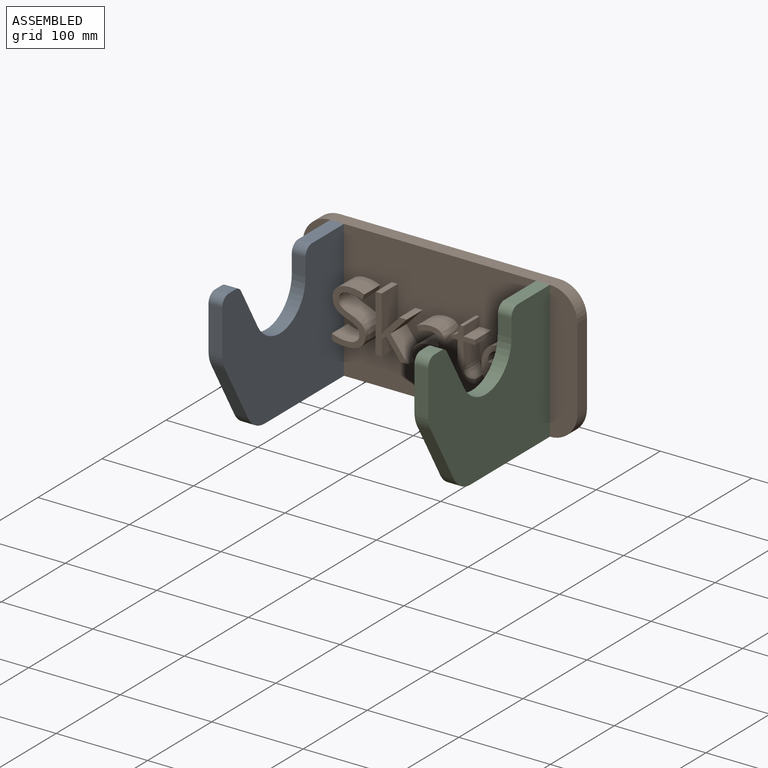
[diagram: assembled view]
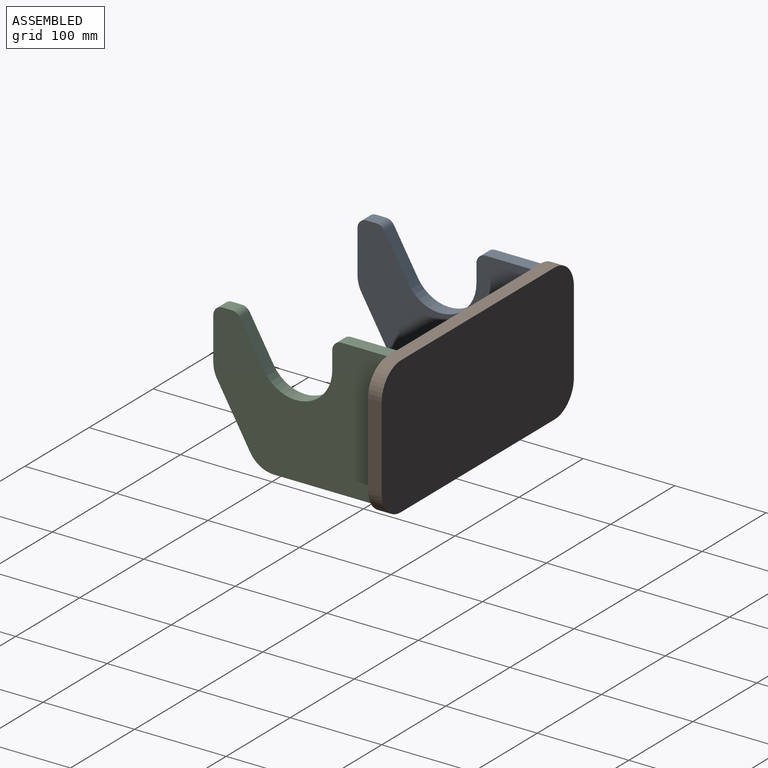
[diagram: assembled view, second angle]
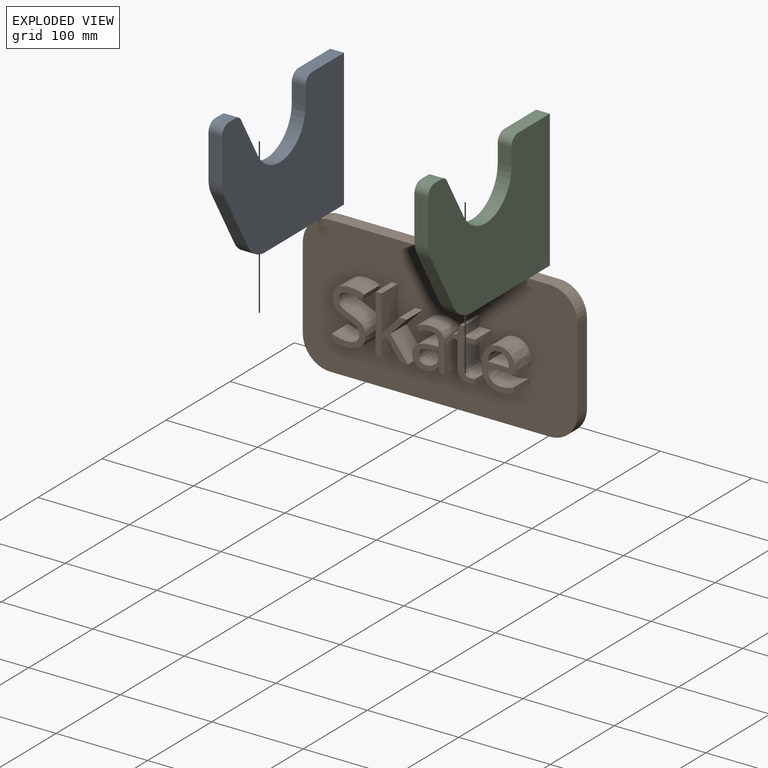
[diagram: exploded view]
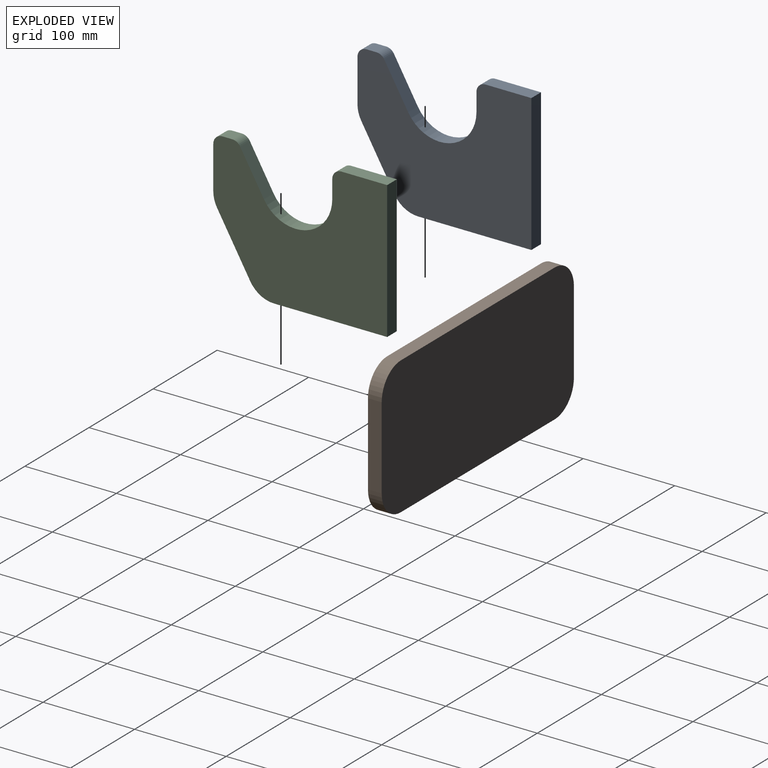
[diagram: exploded view, second angle]
ASSEMBLY  parts=3 mates=2
PART A: 16 faces, bbox 15x190x150 mm
  f0: cylinder r=40mm len=74.64mm, axis (-1,0,0), area 1570.8mm2, adj f1,f13,f14,f15
  f1: plane 20x15mm, normal (0,1,0), area 300mm2, adj f0,f2,f14,f15
  f2: cylinder r=10mm len=15mm, axis (-1,0,0), area 235.6mm2, adj f1,f3,f14,f15
  f3: plane 50x15mm, normal (0,0,1), area 750mm2, adj f2,f4,f14,f15
  f4: plane 150x15mm, normal (0,-1,0), area 2250mm2, adj f3,f5,f14,f15
  f5: plane 123.6x15mm, normal (0,0,-1), area 1854.1mm2, adj f4,f6,f14,f15
  f6: cylinder r=30mm len=25.98mm, axis (-1,0,0), area 471.2mm2, adj f5,f7,f14,f15
  f7: plane 63.04x36.4mm, normal (0,0.87,-0.5), area 1091.9mm2, adj f6,f8,f14,f15
  f8: cylinder r=30mm len=15mm, axis (-1,0,0), area 235.6mm2, adj f7,f9,f14,f15
  f9: plane 46.96x15mm, normal (0,1,0), area 704.4mm2, adj f8,f10,f14,f15
  f10: cylinder r=10mm len=15mm, axis (-1,0,0), area 235.6mm2, adj f9,f11,f14,f15
  f11: plane 15x10.72mm, normal (0,0,1), area 160.8mm2, adj f10,f12,f14,f15
  f12: cylinder r=10mm len=15mm, axis (-1,0,0), area 157.1mm2, adj f11,f13,f14,f15
  f13: plane 45x25.98mm, normal (0,-0.87,0.5), area 779.4mm2, adj f0,f12,f14,f15
  f14: plane 190x150mm, normal (1,0,0), area 20910.4mm2, adj f0,f1,f2,f3,f4,f5,f6,f7
  f15: plane 190x150mm, normal (-1,0,0), area 20910.4mm2, adj f0,f1,f2,f3,f4,f5,f6,f7
PART B: 122 faces, bbox 300x40x150 mm
  f0: plane 300x150mm, normal (0,-1,0), area 40087.6mm2, adj f1,f2,f3,f4,f5,f6,f7,f8
  f1: plane 90x15mm, normal (-1,0,0), area 1350mm2, adj f0,f2,f8,f9
  f2: cylinder r=30mm len=30mm, axis (0,1,0), area 706.9mm2, adj f0,f1,f3,f9
  f3: plane 240x15mm, normal (0,0,-1), area 3600mm2, adj f0,f2,f4,f9
  f4: cylinder r=30mm len=30mm, axis (0,1,0), area 706.9mm2, adj f0,f3,f5,f9
  f5: plane 90x15mm, normal (1,0,0), area 1350mm2, adj f0,f4,f6,f9
  f6: cylinder r=30mm len=30mm, axis (0,1,0), area 706.9mm2, adj f0,f5,f7,f9
  f7: plane 240x15mm, normal (0,0,1), area 3600mm2, adj f0,f6,f8,f9
  f8: cylinder r=30mm len=30mm, axis (0,1,0), area 706.9mm2, adj f0,f1,f7,f9
  f9: plane 300x150mm, normal (0,1,0), area 44227.4mm2, adj f1,f2,f3,f4,f5,f6,f7,f8
  f10: extruded ~25x12.08mm, area 345.9mm2, adj f0,f11,f34,f35
  f11: extruded ~25x9.78mm, area 265.8mm2, adj f0,f10,f12,f35
  f12: extruded ~25x12.69mm, area 366.3mm2, adj f0,f11,f13,f35
  f13: extruded ~25x8.16mm, area 223.3mm2, adj f0,f12,f14,f35
  f14: extruded ~25x3.79mm, area 131.7mm2, adj f0,f13,f15,f35
  f15: extruded ~25x4.99mm, area 129.4mm2, adj f0,f14,f16,f35
  f16: extruded ~25x6.46mm, area 185.5mm2, adj f0,f15,f17,f35
  f17: extruded ~25x8.47mm, area 223.4mm2, adj f0,f16,f18,f35
  f18: extruded ~25x14.12mm, area 363.5mm2, adj f0,f17,f19,f35
  f19: plane 25x5.93mm, normal (0.94,0,-0.34), area 157.5mm2, adj f0,f18,f20,f35
  f20: extruded ~25x16.08mm, area 413mm2, adj f0,f19,f21,f35
  f21: extruded ~25x13.48mm, area 358.4mm2, adj f0,f20,f22,f35
  f22: extruded ~25x10.79mm, area 309.5mm2, adj f0,f21,f23,f35
  f23: extruded ~25x10.47mm, area 282.3mm2, adj f0,f22,f24,f35
  f24: extruded ~25x11.69mm, area 343.2mm2, adj f0,f23,f25,f35
  f25: extruded ~25x8.72mm, area 237.4mm2, adj f0,f24,f26,f35
  f26: extruded ~25x4.09mm, area 137.5mm2, adj f0,f25,f27,f35
  f27: extruded ~25x4.99mm, area 130.1mm2, adj f0,f26,f28,f35
  f28: extruded ~25x7.21mm, area 207.8mm2, adj f0,f27,f29,f35
  f29: extruded ~25x10.27mm, area 269.2mm2, adj f0,f28,f30,f35
  f30: extruded ~25x8.42mm, area 212mm2, adj f0,f29,f31,f35
  f31: extruded ~25x7.87mm, area 206mm2, adj f0,f30,f32,f35
  f32: plane 25x6.57mm, normal (-1,0,0), area 164.3mm2, adj f0,f31,f33,f35
  f33: extruded ~25x16.04mm, area 409.9mm2, adj f0,f32,f34,f35
  f34: extruded ~25x15.24mm, area 403.5mm2, adj f0,f10,f33,f35
  f35: plane 60.29x36.9mm, normal (0,-1,0), area 796mm2, adj f10,f11,f12,f13,f14,f15,f16,f17
  f36: extruded ~25x6.42mm, area 207.4mm2, adj f0,f37,f50,f51
  f37: plane 25x0.32mm, normal (0,0,1), area 8mm2, adj f0,f36,f38,f51
  f38: extruded ~25x6.82mm, area 170.6mm2, adj f0,f37,f39,f51
  f39: plane 33.1x25mm, normal (1,0,0), area 827.6mm2, adj f0,f38,f40,f51
  f40: plane 25x6.58mm, normal (0,0,1), area 164.6mm2, adj f0,f39,f41,f51
  f41: plane 62.42x25mm, normal (-1,0,0), area 1560.5mm2, adj f0,f40,f42,f51
  f42: plane 25x6.58mm, normal (0,0,-1), area 164.6mm2, adj f0,f41,f43,f51
  f43: plane 25x16.44mm, normal (1,0,0), area 411.1mm2, adj f0,f42,f44,f51
  f44: plane 25x5.01mm, normal (0.65,0,-0.76), area 165.6mm2, adj f0,f43,f45,f51
  f45: plane 25x20.78mm, normal (-0.8,0,-0.6), area 648.6mm2, adj f0,f44,f46,f51
  f46: plane 25x8.06mm, normal (0,0,-1), area 201.5mm2, adj f0,f45,f47,f51
  f47: plane 25.23x25mm, normal (0.8,0,0.6), area 790.6mm2, adj f0,f46,f48,f51
  f48: plane 25x18.73mm, normal (0.72,0,-0.69), area 646.2mm2, adj f0,f47,f49,f51
  f49: plane 25x7.91mm, normal (0,0,1), area 197.7mm2, adj f0,f48,f50,f51
  f50: plane 25x15.04mm, normal (-0.73,0,0.69), area 517.1mm2, adj f0,f36,f49,f51
  f51: plane 62.42x35.18mm, normal (0,-1,0), area 780.2mm2, adj f36,f37,f38,f39,f40,f41,f42,f43
  f52: extruded ~25x9.77mm, area 265.5mm2, adj f53,f78,f79,f80
  f53: extruded ~25x6.11mm, area 163.3mm2, adj f52,f54,f79,f80
  f54: extruded ~25x5.5mm, area 152.8mm2, adj f53,f55,f79,f80
  f55: extruded ~25x6.8mm, area 200.5mm2, adj f54,f56,f79,f80
  f56: extruded ~25x11.45mm, area 295.8mm2, adj f55,f57,f79,f80
  f57: plane 25x6.66mm, normal (0.04,0,-1), area 166.7mm2, adj f56,f58,f79,f80
  f58: plane 25x3.97mm, normal (-1,0,0), area 99.2mm2, adj f57,f78,f79,f80
  f59: plane 25x6.26mm, normal (-0.98,0,-0.21), area 160mm2, adj f0,f60,f77,f79
  f60: plane 25x4.94mm, normal (0,0,-1), area 123.5mm2, adj f0,f59,f61,f79
  f61: plane 30.01x25mm, normal (1,0,0), area 750.2mm2, adj f0,f60,f62,f79
  f62: extruded ~25x11.19mm, area 304mm2, adj f0,f61,f63,f79
  f63: extruded ~25x11.65mm, area 311mm2, adj f0,f62,f64,f79
  f64: extruded ~25x7.77mm, area 196.4mm2, adj f0,f63,f65,f79
  f65: extruded ~25x7.12mm, area 191.3mm2, adj f0,f64,f66,f79
  f66: plane 25x5.1mm, normal (-0.93,0,-0.37), area 137.3mm2, adj f0,f65,f67,f79
  f67: extruded ~25x12.42mm, area 324.5mm2, adj f0,f66,f68,f79
  f68: extruded ~25x7.12mm, area 194.1mm2, adj f0,f67,f69,f79
  f69: extruded ~25x7.64mm, area 203.3mm2, adj f0,f68,f70,f79
  f70: plane 25x2.73mm, normal (-1,0,0), area 68.3mm2, adj f0,f69,f71,f79
  f71: plane 25x7.46mm, normal (-0.03,0,1), area 186.5mm2, adj f0,f70,f72,f79
  f72: extruded ~25x21.29mm, area 715.1mm2, adj f0,f71,f73,f79
  f73: extruded ~25x9.59mm, area 265mm2, adj f0,f72,f74,f79
  f74: extruded ~25x10.24mm, area 276mm2, adj f0,f73,f75,f79
  f75: extruded ~25x8.17mm, area 209mm2, adj f0,f74,f76,f79
  f76: extruded ~25x6.55mm, area 217.5mm2, adj f0,f75,f77,f79
  f77: plane 25x0.32mm, normal (0,0,-1), area 8mm2, adj f0,f59,f76,f79
  f78: extruded ~25x9.54mm, area 261.9mm2, adj f52,f58,f79,f80
  f79: plane 45.49x35.26mm, normal (0,-1,0), area 757.2mm2, adj f52,f53,f54,f55,f56,f57,f58,f59
  f80: plane 21.62x16.92mm, normal (0,-1,0), area 294.8mm2, adj f52,f53,f54,f55,f56,f57,f58,f78
  f81: extruded ~25x3.41mm, area 85.7mm2, adj f0,f82,f99,f100
  f82: extruded ~25x5.17mm, area 144.3mm2, adj f0,f81,f83,f100
  f83: extruded ~25x6.09mm, area 163mm2, adj f0,f82,f84,f100
  f84: plane 25.88x25mm, normal (1,0,0), area 646.9mm2, adj f0,f83,f85,f100
  f85: plane 25x12.76mm, normal (0,0,-1), area 319mm2, adj f0,f84,f86,f100
  f86: plane 25x5.17mm, normal (1,0,0), area 129.3mm2, adj f0,f85,f87,f100
  f87: plane 25x12.76mm, normal (0,0,1), area 319mm2, adj f0,f86,f88,f100
  f88: plane 25x10.19mm, normal (1,0,0), area 254.8mm2, adj f0,f87,f89,f100
  f89: plane 25x3.85mm, normal (0,0,1), area 96.3mm2, adj f0,f88,f90,f100
  f90: plane 25x9.38mm, normal (-0.96,0,0.29), area 244.8mm2, adj f0,f89,f91,f100
  f91: plane 25x6.3mm, normal (-0.4,0,0.92), area 172.1mm2, adj f0,f90,f92,f100
  f92: plane 25x3.21mm, normal (-1,0,0), area 80.2mm2, adj f0,f91,f93,f100
  f93: plane 25x6.3mm, normal (0,0,-1), area 157.6mm2, adj f0,f92,f94,f100
  f94: plane 26.16x25mm, normal (-1,0,0), area 654mm2, adj f0,f93,f95,f100
  f95: extruded ~25x13.44mm, area 531.4mm2, adj f0,f94,f96,f100
  f96: extruded ~25x3.8mm, area 95.5mm2, adj f0,f95,f97,f100
  f97: extruded ~25x3.18mm, area 82.7mm2, adj f0,f96,f98,f100
  f98: plane 25x5.1mm, normal (1,0,0), area 127.4mm2, adj f0,f97,f99,f100
  f99: extruded ~25x2.61mm, area 66.6mm2, adj f0,f81,f98,f100
  f100: plane 54.96x26.03mm, normal (0,-1,0), area 500mm2, adj f81,f82,f83,f84,f85,f86,f87,f88
  f101: extruded ~25x8.44mm, area 235mm2, adj f102,f119,f120,f121
  f102: extruded ~25x8.03mm, area 225.1mm2, adj f101,f103,f120,f121
  f103: extruded ~25x9.64mm, area 256.1mm2, adj f102,f104,f120,f121
  f104: plane 25x22.99mm, normal (0,0,1), area 574.7mm2, adj f103,f119,f120,f121
  f105: extruded ~25x15.38mm, area 424.5mm2, adj f0,f106,f118,f120
  f106: extruded ~25x7.6mm, area 191mm2, adj f0,f105,f107,f120
  f107: extruded ~25x6.67mm, area 175.8mm2, adj f0,f106,f108,f120
  f108: plane 25x5.94mm, normal (1,0,0), area 148.6mm2, adj f0,f107,f109,f120
  f109: extruded ~25x14.03mm, area 361mm2, adj f0,f108,f110,f120
  f110: extruded ~25x10.45mm, area 288.3mm2, adj f0,f109,f111,f120
  f111: extruded ~25x11.75mm, area 316.5mm2, adj f0,f110,f112,f120
  f112: plane 30.28x25mm, normal (0,0,-1), area 757mm2, adj f0,f111,f113,f120
  f113: plane 25x4.21mm, normal (1,0,0), area 105.3mm2, adj f0,f112,f114,f120
  f114: extruded ~25x14.34mm, area 387mm2, adj f0,f113,f115,f120
  f115: extruded ~25x13.07mm, area 365.3mm2, adj f0,f114,f116,f120
  f116: extruded ~25x14.07mm, area 398.4mm2, adj f0,f115,f117,f120
  f117: extruded ~25x16.9mm, area 451.6mm2, adj f0,f116,f118,f120
  f118: extruded ~25x16.48mm, area 446.5mm2, adj f0,f105,f117,f120
  f119: extruded ~25x9.54mm, area 260.6mm2, adj f101,f104,f120,f121
  f120: plane 45.58x37.18mm, normal (0,-1,0), area 770.9mm2, adj f101,f102,f103,f104,f105,f106,f107,f108
  f121: plane 22.99x12.99mm, normal (0,-1,0), area 240.7mm2, adj f101,f102,f103,f104,f119
PART C: same geometry as A
PLACE A rot(axis=(0,0,-1),180deg) t=(45,-15,0)mm
PLACE B at identity fixed
PLACE C rot(axis=(0,0,1),180deg) t=(270,-15,0)mm
MATE fastened A.f3 <-> B.f7  axis (0,0,1) through (30,-15,150)mm
MATE fastened C.f3 <-> B.f7  axis (0,0,1) through (270,-15,150)mm
